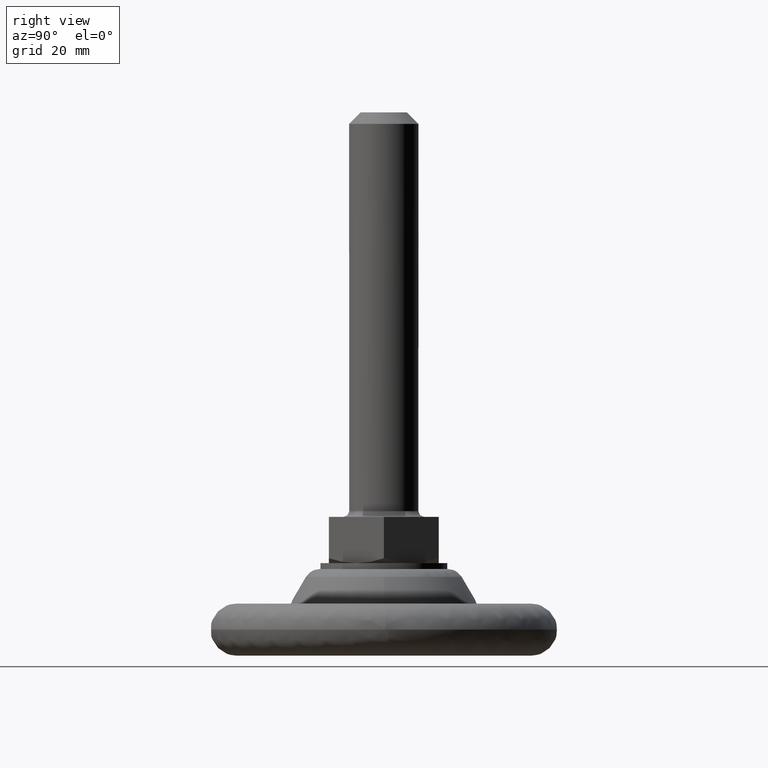
[diagram: clean part render]
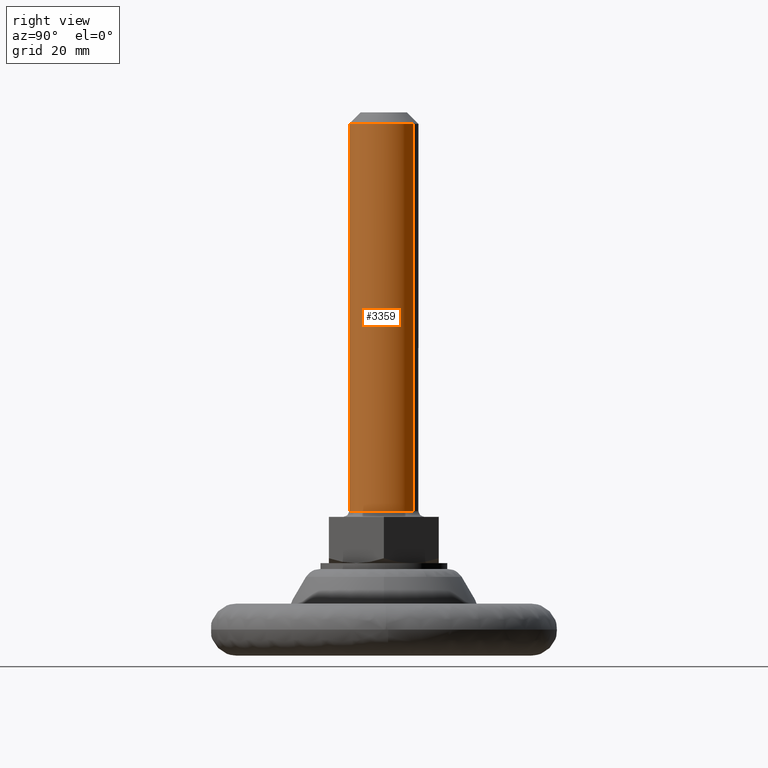
[diagram: same view with one face highlighted and labeled with its STEP entity id]
A machine part, right view. The second image highlights one B-rep face of the part: STEP entity #3359.
In plain terms, the highlighted face is a freeform B-spline surface patch.
Its self-contained STEP definition (entity closure, byte-faithful):
#3072=CARTESIAN_POINT('',(-0.052359213044699,-5.999771538384358,91.999999999999389));
#3073=VERTEX_POINT('',#3072);
#3074=CARTESIAN_POINT('',(-3.223793063738238,-5.060351596694013,92.0));
#3075=VERTEX_POINT('',#3074);
#3076=CARTESIAN_POINT('',(-0.052359213044699,-5.999771538384358,91.999999999999389));
#3077=CARTESIAN_POINT('',(-1.772763074816111,-5.984757801319045,91.999999999999687));
#3078=CARTESIAN_POINT('',(-3.223793063738238,-5.060351596694014,92.0));
#3086=(BOUNDED_CURVE()B_SPLINE_CURVE(2,(#3076,#3077,#3078),.UNSPECIFIED.,.F.,.U.)B_SPLINE_CURVE_WITH_KNOTS((3,3),(0.251539894336616,0.341949938319387),.UNSPECIFIED.)CURVE()GEOMETRIC_REPRESENTATION_ITEM()RATIONAL_B_SPLINE_CURVE((0.996414028096637,0.891796941867167,0.863791124650735))REPRESENTATION_ITEM(''));
#3087=EDGE_CURVE('',#3073,#3075,#3086,.T.);
#3154=CARTESIAN_POINT('',(6.0,0.0,92.0));
#3155=VERTEX_POINT('',#3154);
#3156=CARTESIAN_POINT('',(6.0,0.0,92.0));
#3157=CARTESIAN_POINT('',(6.000000000000357,-6.000000000000139,91.999999999999687));
#3158=CARTESIAN_POINT('',(1.012574E-012,-5.999999999999817,91.999999999999389));
#3159=CARTESIAN_POINT('',(-0.026180104950932,-5.999999999999817,91.999999999999389));
#3160=CARTESIAN_POINT('',(-0.052359213044699,-5.999771538384358,91.999999999999389));
#3168=(BOUNDED_CURVE()B_SPLINE_CURVE(2,(#3156,#3157,#3158,#3159,#3160),.UNSPECIFIED.,.F.,.U.)B_SPLINE_CURVE_WITH_KNOTS((3,2,3),(0.0,0.250000000000000,0.251539894336616),.UNSPECIFIED.)CURVE()GEOMETRIC_REPRESENTATION_ITEM()RATIONAL_B_SPLINE_CURVE((1.0,0.707106781186548,1.0,0.998195901564464,0.996414028096637))REPRESENTATION_ITEM(''));
#3169=EDGE_CURVE('',#3155,#3073,#3168,.T.);
#3171=CARTESIAN_POINT('',(3.223793063738237,5.060351596694014,92.0));
#3172=VERTEX_POINT('',#3171);
#3173=CARTESIAN_POINT('',(3.223793063738238,5.060351596694014,92.0));
#3174=CARTESIAN_POINT('',(5.999999999999337,3.291716257114012,91.999999999999986));
#3175=CARTESIAN_POINT('',(6.0,0.0,92.0));
#3183=(BOUNDED_CURVE()B_SPLINE_CURVE(2,(#3173,#3174,#3175),.UNSPECIFIED.,.F.,.U.)B_SPLINE_CURVE_WITH_KNOTS((3,3),(0.841949938319387,1.0),.UNSPECIFIED.)CURVE()GEOMETRIC_REPRESENTATION_ITEM()RATIONAL_B_SPLINE_CURVE((0.863791124650735,0.814832834802802,1.0))REPRESENTATION_ITEM(''));
#3184=EDGE_CURVE('',#3172,#3155,#3183,.T.);
#3226=CARTESIAN_POINT('',(-3.223794015247472,-5.060350990517948,25.000000000089148));
#3227=VERTEX_POINT('',#3226);
#3241=CARTESIAN_POINT('',(-3.223793063738238,-5.060351596694013,92.0));
#3242=CARTESIAN_POINT('',(-3.223794015247472,-5.060350990517948,25.000000000089148));
#3243=QUASI_UNIFORM_CURVE('',1,(#3241,#3242),.UNSPECIFIED.,.F.,.U.);
#3244=EDGE_CURVE('',#3075,#3227,#3243,.T.);
#3249=CARTESIAN_POINT('',(3.223794015247472,5.060350990517949,25.000000000089130));
#3250=VERTEX_POINT('',#3249);
#3251=CARTESIAN_POINT('',(3.223793063738237,5.060351596694014,92.0));
#3252=CARTESIAN_POINT('',(3.223794015247472,5.060350990517949,25.000000000089130));
#3253=QUASI_UNIFORM_CURVE('',1,(#3251,#3252),.UNSPECIFIED.,.F.,.U.);
#3254=EDGE_CURVE('',#3172,#3250,#3253,.T.);
#3289=CARTESIAN_POINT('',(3.223797650080942,5.060348674877313,93.675000000000011));
#3290=CARTESIAN_POINT('',(8.284146324958254,1.836551024796371,93.675000000000026));
#3291=CARTESIAN_POINT('',(5.060348674877313,-3.223797650080942,93.675000000000011));
#3292=CARTESIAN_POINT('',(1.836551024796371,-8.284146324958254,93.675000000000026));
#3293=CARTESIAN_POINT('',(-3.223797650080942,-5.060348674877313,93.675000000000011));
#3294=CARTESIAN_POINT('',(3.223797650080942,5.060348674877313,23.283124999999981));
#3295=CARTESIAN_POINT('',(8.284146324958254,1.836551024796371,23.283124999999991));
#3296=CARTESIAN_POINT('',(5.060348674877313,-3.223797650080942,23.283124999999981));
#3297=CARTESIAN_POINT('',(1.836551024796371,-8.284146324958254,23.283124999999991));
#3298=CARTESIAN_POINT('',(-3.223797650080942,-5.060348674877313,23.283124999999981));
#3306=(BOUNDED_SURFACE()B_SPLINE_SURFACE(2,1,((#3289,#3294),(#3290,#3295),(#3291,#3296),(#3292,#3297),(#3293,#3298)),.UNSPECIFIED.,.F.,.F.,.U.)B_SPLINE_SURFACE_WITH_KNOTS((3,2,3),(2,2),(0.0,9.941125496954278,19.882250993908560),(0.0,70.391875000000041),.UNSPECIFIED.)GEOMETRIC_REPRESENTATION_ITEM()RATIONAL_B_SPLINE_SURFACE(((1.0,1.0),(0.707106781186548,0.707106781186548),(1.0,1.0),(0.707106781186548,0.707106781186548),(1.0,1.0)))REPRESENTATION_ITEM('')SURFACE());
#3307=CARTESIAN_POINT('',(2.417438614306245,-5.491447035714820,25.000000000175959));
#3308=VERTEX_POINT('',#3307);
#3309=CARTESIAN_POINT('',(-3.223794015247473,-5.060350990517948,25.000000000089152));
#3310=CARTESIAN_POINT('',(-1.748838179553562,-5.999999999999048,25.000000000119758));
#3311=CARTESIAN_POINT('',(3.486706E-013,-5.999999999999451,25.000000000145391));
#3312=CARTESIAN_POINT('',(1.262211072353178,-5.999999999999740,25.000000000163897));
#3313=CARTESIAN_POINT('',(2.417438614306245,-5.491447035714820,25.000000000175959));
#3321=(BOUNDED_CURVE()B_SPLINE_CURVE(2,(#3309,#3310,#3311,#3312,#3313),.UNSPECIFIED.,.F.,.U.)B_SPLINE_CURVE_WITH_KNOTS((3,2,3),(0.658050032968453,0.750000000000000,0.818414990139238),.UNSPECIFIED.)CURVE()GEOMETRIC_REPRESENTATION_ITEM()RATIONAL_B_SPLINE_CURVE((0.863791106862731,0.892273912745358,1.0,0.919846853292112,0.883563120517416))REPRESENTATION_ITEM(''));
#3322=EDGE_CURVE('',#3227,#3308,#3321,.T.);
#3323=ORIENTED_EDGE('',*,*,#3322,.T.);
#3324=CARTESIAN_POINT('',(6.0,0.0,25.0));
#3325=VERTEX_POINT('',#3324);
#3326=CARTESIAN_POINT('',(2.417438614306245,-5.491447035714820,25.000000000175959));
#3327=CARTESIAN_POINT('',(6.000000000000001,-3.914335907159392,25.000000000087979));
#3328=CARTESIAN_POINT('',(6.0,0.0,25.0));
#3336=(BOUNDED_CURVE()B_SPLINE_CURVE(2,(#3326,#3327,#3328),.UNSPECIFIED.,.F.,.U.)B_SPLINE_CURVE_WITH_KNOTS((3,3),(0.818414990139238,1.0),.UNSPECIFIED.)CURVE()GEOMETRIC_REPRESENTATION_ITEM()RATIONAL_B_SPLINE_CURVE((0.883563120517416,0.787259927894436,1.0))REPRESENTATION_ITEM(''));
#3337=EDGE_CURVE('',#3308,#3325,#3336,.T.);
#3338=ORIENTED_EDGE('',*,*,#3337,.T.);
#3339=CARTESIAN_POINT('',(6.0,0.0,25.0));
#3340=CARTESIAN_POINT('',(5.999999999999584,3.291715523234413,25.000000000031502));
#3341=CARTESIAN_POINT('',(3.223794015247473,5.060350990517949,25.000000000089130));
#3349=(BOUNDED_CURVE()B_SPLINE_CURVE(2,(#3339,#3340,#3341),.UNSPECIFIED.,.F.,.U.)B_SPLINE_CURVE_WITH_KNOTS((3,3),(0.0,0.158050032968453),.UNSPECIFIED.)CURVE()GEOMETRIC_REPRESENTATION_ITEM()RATIONAL_B_SPLINE_CURVE((1.0,0.814832868441190,0.863791106862731))REPRESENTATION_ITEM(''));
#3350=EDGE_CURVE('',#3325,#3250,#3349,.T.);
#3351=ORIENTED_EDGE('',*,*,#3350,.T.);
#3352=ORIENTED_EDGE('',*,*,#3254,.F.);
#3353=ORIENTED_EDGE('',*,*,#3184,.T.);
#3354=ORIENTED_EDGE('',*,*,#3169,.T.);
#3355=ORIENTED_EDGE('',*,*,#3087,.T.);
#3356=ORIENTED_EDGE('',*,*,#3244,.T.);
#3357=EDGE_LOOP('',(#3323,#3338,#3351,#3352,#3353,#3354,#3355,#3356));
#3358=FACE_OUTER_BOUND('',#3357,.T.);
#3359=ADVANCED_FACE('',(#3358),#3306,.T.);